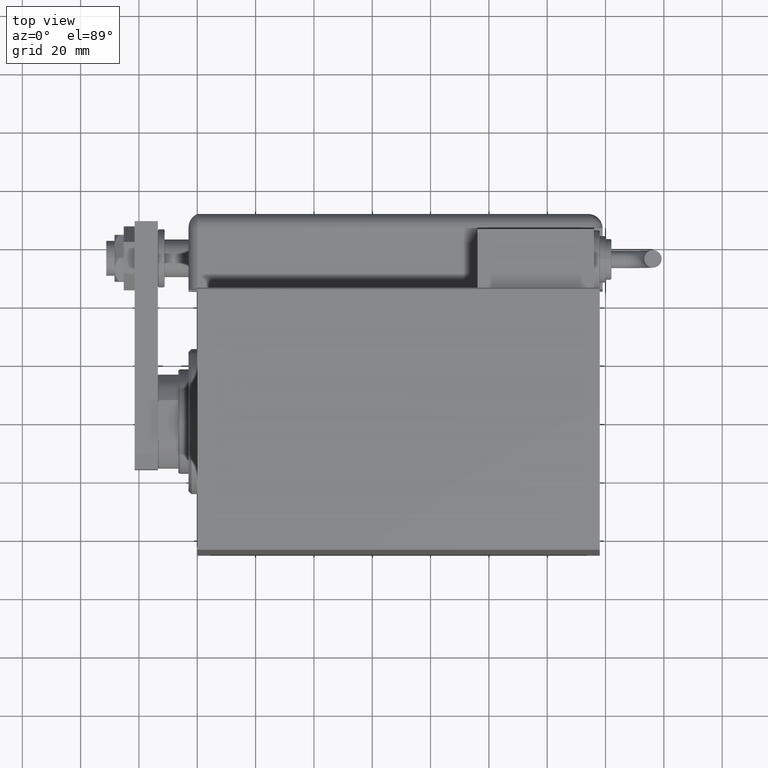
[diagram: clean part render]
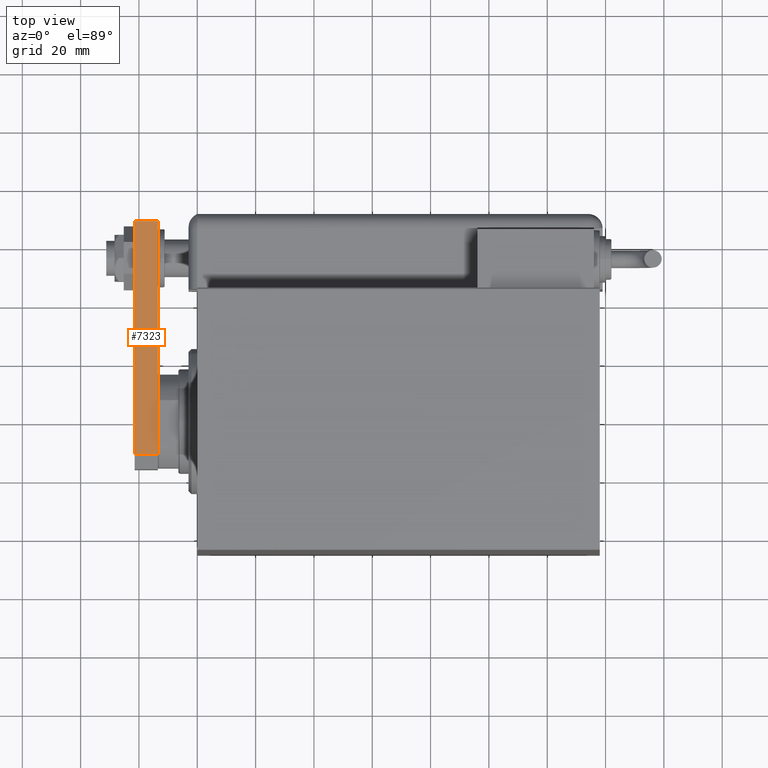
[diagram: same view with one face highlighted and labeled with its STEP entity id]
A machine part, top view. The second image highlights one B-rep face of the part: STEP entity #7323.
In plain terms, the highlighted planar face has unit normal (-0, -0, -1).
Its self-contained STEP definition (entity closure, byte-faithful):
#451 = VECTOR ( 'NONE', #21273, 1000.000000000000000 ) ;
#1696 = CARTESIAN_POINT ( 'NONE',  ( -15.00000000000000000, 85.00000000000000000, 0.000000000000000000 ) ) ;
#3159 = EDGE_CURVE ( 'NONE', #14741, #22376, #47645, .T. ) ;
#4158 = VECTOR ( 'NONE', #37284, 1000.000000000000000 ) ;
#4353 = VECTOR ( 'NONE', #23897, 1000.000000000000000 ) ;
#5598 = FACE_OUTER_BOUND ( 'NONE', #46708, .T. ) ;
#7323 = ADVANCED_FACE ( 'NONE', ( #5598 ), #47730, .F. ) ;
#8264 = ORIENTED_EDGE ( 'NONE', *, *, #3159, .T. ) ;
#9587 = CARTESIAN_POINT ( 'NONE',  ( -15.00000000000000888, 5.000000000000031974, 8.000000000000000000 ) ) ;
#14741 = VERTEX_POINT ( 'NONE', #1696 ) ;
#14990 = VERTEX_POINT ( 'NONE', #42849 ) ;
#17362 = CARTESIAN_POINT ( 'NONE',  ( -15.00000000000000000, 85.00000000000000000, 8.000000000000000000 ) ) ;
#21273 = DIRECTION ( 'NONE',  ( -1.020425574104004122E-16, -1.000000000000000000, 0.000000000000000000 ) ) ;
#21573 = LINE ( 'NONE', #17362, #451 ) ;
#22376 = VERTEX_POINT ( 'NONE', #37212 ) ;
#23099 = CARTESIAN_POINT ( 'NONE',  ( -15.00000000000000888, 5.000000000000031974, 8.000000000000000000 ) ) ;
#23897 = DIRECTION ( 'NONE',  ( -0.000000000000000000, -0.000000000000000000, -1.000000000000000000 ) ) ;
#24778 = DIRECTION ( 'NONE',  ( -1.020425574104004122E-16, -1.000000000000000000, 0.000000000000000000 ) ) ;
#28837 = ORIENTED_EDGE ( 'NONE', *, *, #54035, .F. ) ;
#29297 = CARTESIAN_POINT ( 'NONE',  ( -15.00000000000000000, 85.00000000000000000, 8.000000000000000000 ) ) ;
#29372 = DIRECTION ( 'NONE',  ( 1.000000000000000000, -1.020425574104004122E-16, 0.000000000000000000 ) ) ;
#32471 = LINE ( 'NONE', #9587, #4158 ) ;
#33304 = CARTESIAN_POINT ( 'NONE',  ( -15.00000000000000000, 85.00000000000000000, 8.000000000000000000 ) ) ;
#34966 = EDGE_CURVE ( 'NONE', #14990, #14741, #52183, .T. ) ;
#36828 = VERTEX_POINT ( 'NONE', #23099 ) ;
#37206 = ORIENTED_EDGE ( 'NONE', *, *, #34966, .T. ) ;
#37212 = CARTESIAN_POINT ( 'NONE',  ( -15.00000000000000888, 5.000000000000031974, 0.000000000000000000 ) ) ;
#37284 = DIRECTION ( 'NONE',  ( 0.000000000000000000, 0.000000000000000000, 1.000000000000000000 ) ) ;
#39993 = ORIENTED_EDGE ( 'NONE', *, *, #50170, .T. ) ;
#42849 = CARTESIAN_POINT ( 'NONE',  ( -15.00000000000000000, 85.00000000000000000, 8.000000000000000000 ) ) ;
#43026 = VECTOR ( 'NONE', #24778, 1000.000000000000000 ) ;
#45085 = AXIS2_PLACEMENT_3D ( 'NONE', #33304, #29372, #47136 ) ;
#46708 = EDGE_LOOP ( 'NONE', ( #8264, #39993, #28837, #37206 ) ) ;
#47136 = DIRECTION ( 'NONE',  ( 1.020425574104004122E-16, 1.000000000000000000, 0.000000000000000000 ) ) ;
#47645 = LINE ( 'NONE', #56979, #43026 ) ;
#47730 = PLANE ( 'NONE',  #45085 ) ;
#50170 = EDGE_CURVE ( 'NONE', #22376, #36828, #32471, .T. ) ;
#52183 = LINE ( 'NONE', #29297, #4353 ) ;
#54035 = EDGE_CURVE ( 'NONE', #14990, #36828, #21573, .T. ) ;
#56979 = CARTESIAN_POINT ( 'NONE',  ( -15.00000000000000000, 85.00000000000000000, 0.000000000000000000 ) ) ;